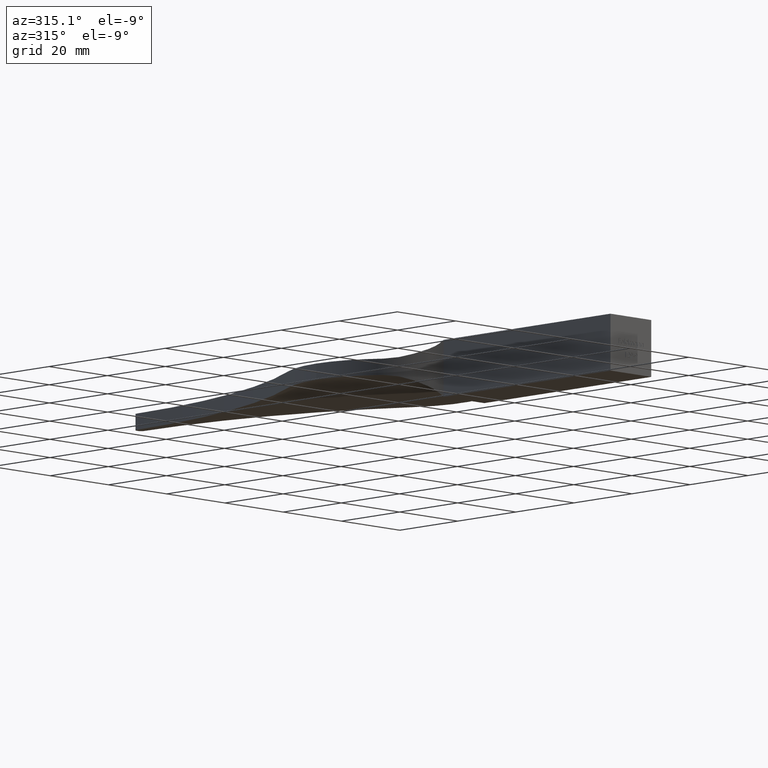
[diagram: clean part render]
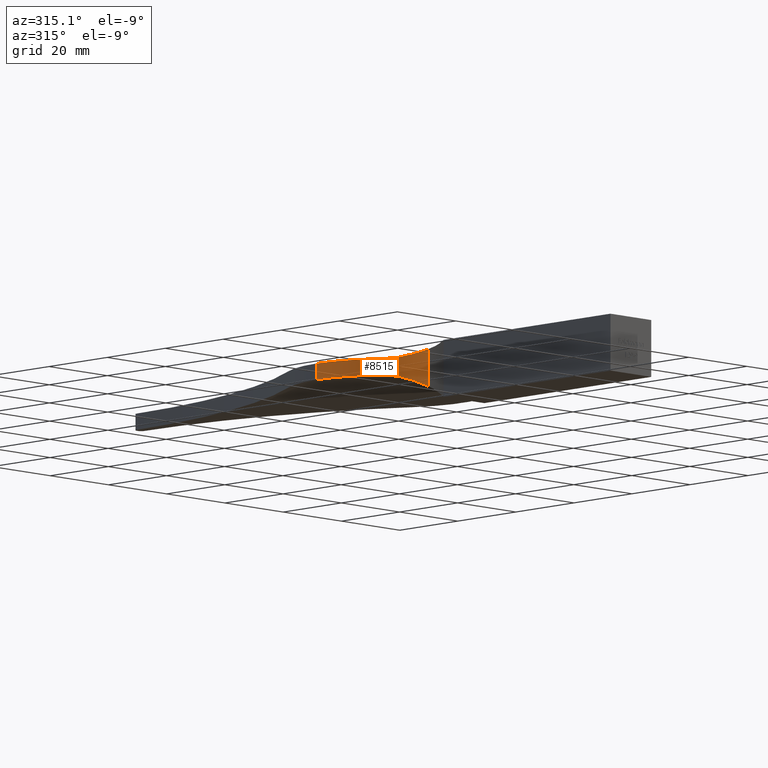
[diagram: same view with one face highlighted and labeled with its STEP entity id]
A machine part, auxiliary view. The second image highlights one B-rep face of the part: STEP entity #8515.
In plain terms, the highlighted cylindrical surface (partial cylindrical patch) has radius 26 mm, axis along (-0, -0, -1).
Its self-contained STEP definition (entity closure, byte-faithful):
#257 = VERTEX_POINT ( 'NONE', #9165 ) ;
#290 = CARTESIAN_POINT ( 'NONE',  ( -25.25000000000004600, 82.98918044109893800, -2.000000000000000000 ) ) ;
#301 = CARTESIAN_POINT ( 'NONE',  ( -10.29642975987628800, 59.45247741029783800, 4.583415023412721100 ) ) ;
#332 = CARTESIAN_POINT ( 'NONE',  ( -18.75634394030882700, 65.79221365986846600, 2.000000000000000900 ) ) ;
#407 = CARTESIAN_POINT ( 'NONE',  ( -16.39938269061381200, 63.44127846361299600, -2.371450443069544400 ) ) ;
#527 = VERTEX_POINT ( 'NONE', #7035 ) ;
#652 = AXIS2_PLACEMENT_3D ( 'NONE', #6780, #2448, #7527 ) ;
#737 = CARTESIAN_POINT ( 'NONE',  ( 0.7499999999999972200, 82.98918044109893800, 2.000000000000000000 ) ) ;
#828 = EDGE_LOOP ( 'NONE', ( #7048, #1455, #9249, #9092, #4141, #1643 ) ) ;
#1037 = CARTESIAN_POINT ( 'NONE',  ( -11.09999648839374600, 59.82961363928989600, 4.242321974493344200 ) ) ;
#1139 = CARTESIAN_POINT ( 'NONE',  ( -15.31177591070958100, 62.53835867823524800, -2.673961191489673300 ) ) ;
#1455 = ORIENTED_EDGE ( 'NONE', *, *, #7173, .T. ) ;
#1470 = LINE ( 'NONE', #7230, #8922 ) ;
#1643 = ORIENTED_EDGE ( 'NONE', *, *, #2363, .T. ) ;
#1687 = CARTESIAN_POINT ( 'NONE',  ( -25.25000000000004600, 82.98918044109893800, 2.000000000000000000 ) ) ;
#1864 = CARTESIAN_POINT ( 'NONE',  ( -11.91248342311634900, 60.21093636930371700, -3.897442531459416800 ) ) ;
#1933 = CIRCLE ( 'NONE', #652, 26.00000000000004300 ) ;
#2149 = CARTESIAN_POINT ( 'NONE',  ( 0.7499999999999972200, 82.98918044109893800, 2.000000000000000000 ) ) ;
#2361 = CYLINDRICAL_SURFACE ( 'NONE', #5641, 26.00000000000004300 ) ;
#2363 = EDGE_CURVE ( 'NONE', #527, #3214, #2449, .T. ) ;
#2448 = DIRECTION ( 'NONE',  ( 0.0000000000000000000, -0.0000000000000000000, -1.000000000000000000 ) ) ;
#2449 = B_SPLINE_CURVE_WITH_KNOTS ( 'NONE', 3,
 ( #301, #1037, #6826, #2490, #7578, #3211, #8305, #3950, #9017, #4672, #332, #5405 ),
 .UNSPECIFIED., .F., .F.,
 ( 4, 2, 2, 2, 2, 4 ),
 ( 0.006676169963743551100, 0.009523051192820788200, 0.01236993242189802400, 0.01521681365097526100, 0.01664025426551386800, 0.01806369488005247700 ),
 .UNSPECIFIED. ) ;
#2459 = EDGE_CURVE ( 'NONE', #5261, #8114, #6797, .T. ) ;
#2490 = CARTESIAN_POINT ( 'NONE',  ( -13.45435604436488200, 61.19311511954642700, 3.302731327743180700 ) ) ;
#2867 = DIRECTION ( 'NONE',  ( 1.000000000000000000, 0.0000000000000000000, 0.0000000000000000000 ) ) ;
#2904 = DIRECTION ( 'NONE',  ( 0.0000000000000000000, 0.0000000000000000000, 1.000000000000000000 ) ) ;
#3032 = AXIS2_PLACEMENT_3D ( 'NONE', #2149, #7228, #2867 ) ;
#3044 = EDGE_CURVE ( 'NONE', #3214, #257, #4246, .T. ) ;
#3211 = CARTESIAN_POINT ( 'NONE',  ( -15.68300957425141800, 62.81971442350177200, 2.555073745311141800 ) ) ;
#3214 = VERTEX_POINT ( 'NONE', #6564 ) ;
#3283 = CARTESIAN_POINT ( 'NONE',  ( -18.44197706175112800, 65.42199436012772700, -2.000000000000000400 ) ) ;
#3950 = CARTESIAN_POINT ( 'NONE',  ( -17.43289232592080800, 64.39864428994144400, 2.150748517196365400 ) ) ;
#4013 = CARTESIAN_POINT ( 'NONE',  ( -17.78402066115250300, 64.73031084797040100, -2.080495572099118300 ) ) ;
#4141 = ORIENTED_EDGE ( 'NONE', *, *, #4417, .T. ) ;
#4246 = CIRCLE ( 'NONE', #3032, 26.00000000000004300 ) ;
#4417 = EDGE_CURVE ( 'NONE', #8114, #527, #1470, .T. ) ;
#4672 = CARTESIAN_POINT ( 'NONE',  ( -18.43476238035066900, 65.43425512295479500, 2.020242681155179500 ) ) ;
#4747 = CARTESIAN_POINT ( 'NONE',  ( -16.75128107919410100, 63.75563628619161700, -2.287732506062786900 ) ) ;
#5261 = VERTEX_POINT ( 'NONE', #5388 ) ;
#5388 = CARTESIAN_POINT ( 'NONE',  ( -19.06886061593461800, 66.16025403784439600, -2.000000000000000000 ) ) ;
#5405 = CARTESIAN_POINT ( 'NONE',  ( -19.06886061593461800, 66.16025403784439600, 2.000000000000000000 ) ) ;
#5466 = CARTESIAN_POINT ( 'NONE',  ( -15.68019758564480000, 62.83302987390988600, -2.564356190144575700 ) ) ;
#5641 = AXIS2_PLACEMENT_3D ( 'NONE', #737, #8661, #5793 ) ;
#5793 = DIRECTION ( 'NONE',  ( -1.000000000000000000, 0.0000000000000000000, 0.0000000000000000000 ) ) ;
#6195 = CARTESIAN_POINT ( 'NONE',  ( -13.45560009347296500, 61.13353986708263900, -3.269469758013279700 ) ) ;
#6564 = CARTESIAN_POINT ( 'NONE',  ( -19.06886061593461800, 66.16025403784439600, 2.000000000000000000 ) ) ;
#6780 = CARTESIAN_POINT ( 'NONE',  ( 0.7499999999999972200, 82.98918044109893800, -2.000000000000000000 ) ) ;
#6797 = B_SPLINE_CURVE_WITH_KNOTS ( 'NONE', 3,
 ( #9075, #3283, #4013, #4747, #407, #5466, #1139, #6195, #1864, #6924 ),
 .UNSPECIFIED., .F., .F.,
 ( 4, 2, 2, 2, 4 ),
 ( 0.0000000000000000000, 0.002869357970956323900, 0.004304036956434475700, 0.005738715941912627900, 0.01147743188382526300 ),
 .UNSPECIFIED. ) ;
#6826 = CARTESIAN_POINT ( 'NONE',  ( -11.89181537012534800, 60.25117924741150000, 3.913110207739900900 ) ) ;
#6924 = CARTESIAN_POINT ( 'NONE',  ( -10.29642975987608000, 59.45247741029774600, -4.583415023412804600 ) ) ;
#7035 = CARTESIAN_POINT ( 'NONE',  ( -10.29642975987628800, 59.45247741029783800, 4.583415023412721100 ) ) ;
#7048 = ORIENTED_EDGE ( 'NONE', *, *, #3044, .T. ) ;
#7173 = EDGE_CURVE ( 'NONE', #257, #8794, #7415, .T. ) ;
#7214 = VECTOR ( 'NONE', #8216, 1000.000000000000000 ) ;
#7228 = DIRECTION ( 'NONE',  ( 0.0000000000000000000, -0.0000000000000000000, -1.000000000000000000 ) ) ;
#7230 = CARTESIAN_POINT ( 'NONE',  ( -10.29642975987628400, 59.45247741029783800, 2.000000000000000000 ) ) ;
#7415 = LINE ( 'NONE', #1687, #7214 ) ;
#7527 = DIRECTION ( 'NONE',  ( 1.000000000000000000, 0.0000000000000000000, 0.0000000000000000000 ) ) ;
#7578 = CARTESIAN_POINT ( 'NONE',  ( -14.21209123578458600, 61.70568944562304400, 3.026556337434829700 ) ) ;
#8114 = VERTEX_POINT ( 'NONE', #8845 ) ;
#8166 = FACE_OUTER_BOUND ( 'NONE', #828, .T. ) ;
#8216 = DIRECTION ( 'NONE',  ( -0.0000000000000000000, -0.0000000000000000000, -1.000000000000000000 ) ) ;
#8305 = CARTESIAN_POINT ( 'NONE',  ( -16.39616791289249100, 63.42105950941570600, 2.359413501394681300 ) ) ;
#8515 = ADVANCED_FACE ( 'NONE', ( #8166 ), #2361, .T. ) ;
#8661 = DIRECTION ( 'NONE',  ( -0.0000000000000000000, -0.0000000000000000000, -1.000000000000000000 ) ) ;
#8760 = EDGE_CURVE ( 'NONE', #5261, #8794, #1933, .T. ) ;
#8794 = VERTEX_POINT ( 'NONE', #290 ) ;
#8845 = CARTESIAN_POINT ( 'NONE',  ( -10.29642975987608000, 59.45247741029774600, -4.583415023412804600 ) ) ;
#8922 = VECTOR ( 'NONE', #2904, 1000.000000000000000 ) ;
#9017 = CARTESIAN_POINT ( 'NONE',  ( -17.77356684978984800, 64.73793441027952200, 2.095473890967764600 ) ) ;
#9075 = CARTESIAN_POINT ( 'NONE',  ( -19.06886061593461800, 66.16025403784439600, -2.000000000000000000 ) ) ;
#9092 = ORIENTED_EDGE ( 'NONE', *, *, #2459, .T. ) ;
#9165 = CARTESIAN_POINT ( 'NONE',  ( -25.25000000000004600, 82.98918044109893800, 2.000000000000000000 ) ) ;
#9249 = ORIENTED_EDGE ( 'NONE', *, *, #8760, .F. ) ;